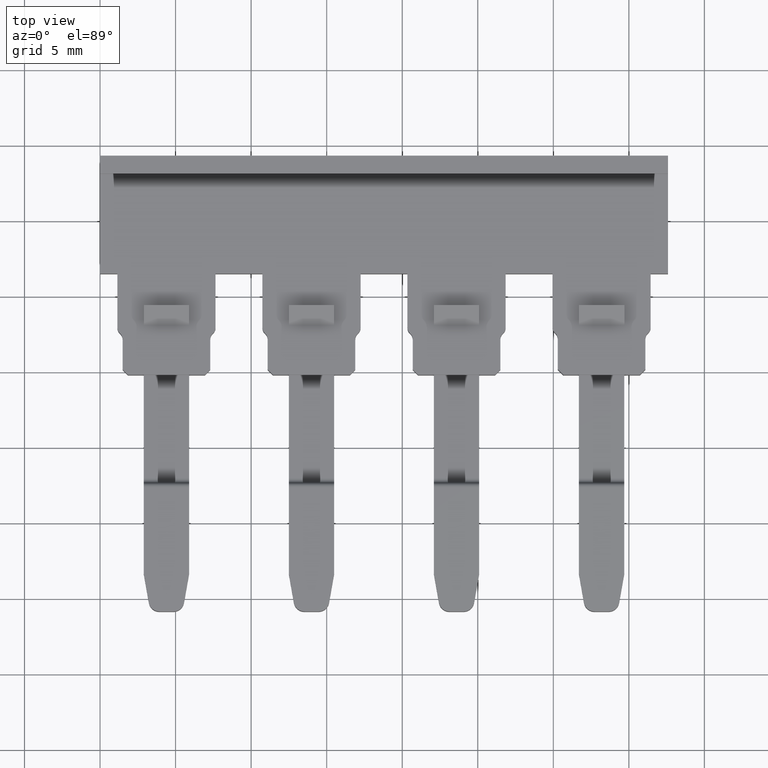
[diagram: clean part render]
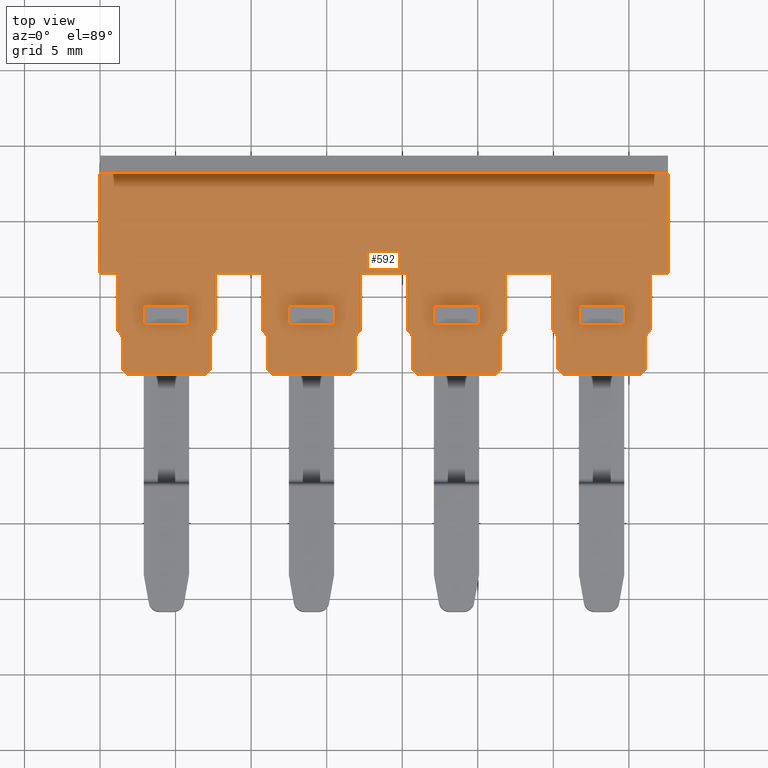
[diagram: same view with one face highlighted and labeled with its STEP entity id]
A machine part, top view. The second image highlights one B-rep face of the part: STEP entity #592.
In plain terms, the highlighted planar face has unit normal (0, 0, -1).
Its self-contained STEP definition (entity closure, byte-faithful):
#15 = EDGE_CURVE ( 'NONE', #5304, #5281, #1111, .T. ) ;
#25 = EDGE_CURVE ( 'NONE', #5001, #4995, #1173, .T. ) ;
#30 = EDGE_CURVE ( 'NONE', #5054, #5304, #1161, .T. ) ;
#31 = EDGE_CURVE ( 'NONE', #5125, #5121, #1151, .T. ) ;
#38 = EDGE_CURVE ( 'NONE', #5088, #5130, #1185, .T. ) ;
#50 = EDGE_CURVE ( 'NONE', #5117, #5108, #1190, .T. ) ;
#55 = EDGE_CURVE ( 'NONE', #5064, #5120, #1224, .T. ) ;
#71 = EDGE_CURVE ( 'NONE', #5281, #5155, #1272, .T. ) ;
#75 = EDGE_CURVE ( 'NONE', #5108, #5120, #2981, .T. ) ;
#78 = EDGE_CURVE ( 'NONE', #5088, #5046, #2969, .T. ) ;
#83 = EDGE_CURVE ( 'NONE', #5046, #5112, #1345, .T. ) ;
#84 = EDGE_CURVE ( 'NONE', #5155, #5112, #3020, .T. ) ;
#87 = EDGE_CURVE ( 'NONE', #5117, #5111, #3023, .T. ) ;
#91 = EDGE_CURVE ( 'NONE', #5064, #5124, #1344, .T. ) ;
#92 = EDGE_CURVE ( 'NONE', #5138, #5081, #1359, .T. ) ;
#93 = EDGE_CURVE ( 'NONE', #5105, #5109, #1319, .T. ) ;
#95 = EDGE_CURVE ( 'NONE', #5166, #5185, #1357, .T. ) ;
#96 = EDGE_CURVE ( 'NONE', #5061, #5174, #1351, .T. ) ;
#97 = EDGE_CURVE ( 'NONE', #5102, #5138, #3055, .T. ) ;
#98 = EDGE_CURVE ( 'NONE', #5113, #5087, #1379, .T. ) ;
#101 = EDGE_CURVE ( 'NONE', #5067, #5164, #1389, .T. ) ;
#102 = EDGE_CURVE ( 'NONE', #5111, #5121, #1396, .T. ) ;
#103 = EDGE_CURVE ( 'NONE', #5149, #5154, #1380, .T. ) ;
#104 = EDGE_CURVE ( 'NONE', #5113, #5114, #3036, .T. ) ;
#106 = EDGE_CURVE ( 'NONE', #5122, #5053, #1363, .T. ) ;
#108 = EDGE_CURVE ( 'NONE', #5148, #5226, #1387, .T. ) ;
#110 = EDGE_CURVE ( 'NONE', #5144, #5156, #1378, .T. ) ;
#111 = EDGE_CURVE ( 'NONE', #5118, #5058, #1407, .T. ) ;
#112 = EDGE_CURVE ( 'NONE', #5087, #5123, #3038, .T. ) ;
#113 = EDGE_CURVE ( 'NONE', #5057, #5001, #1451, .T. ) ;
#114 = EDGE_CURVE ( 'NONE', #5135, #5159, #1445, .T. ) ;
#115 = EDGE_CURVE ( 'NONE', #5084, #5124, #1421, .T. ) ;
#118 = EDGE_CURVE ( 'NONE', #5213, #5170, #1449, .T. ) ;
#121 = EDGE_CURVE ( 'NONE', #5160, #5159, #1409, .T. ) ;
#123 = EDGE_CURVE ( 'NONE', #5144, #5123, #1438, .T. ) ;
#124 = EDGE_CURVE ( 'NONE', #5114, #5047, #1443, .T. ) ;
#125 = EDGE_CURVE ( 'NONE', #5061, #5213, #1411, .T. ) ;
#126 = EDGE_CURVE ( 'NONE', #5174, #5170, #1437, .T. ) ;
#128 = EDGE_CURVE ( 'NONE', #5226, #5189, #1456, .T. ) ;
#129 = EDGE_CURVE ( 'NONE', #5145, #5189, #1493, .T. ) ;
#132 = EDGE_CURVE ( 'NONE', #5175, #5156, #1463, .T. ) ;
#134 = EDGE_CURVE ( 'NONE', #5057, #5081, #1452, .T. ) ;
#135 = EDGE_CURVE ( 'NONE', #5115, #5054, #3090, .T. ) ;
#137 = EDGE_CURVE ( 'NONE', #4995, #5104, #1487, .T. ) ;
#138 = EDGE_CURVE ( 'NONE', #5128, #5136, #1465, .T. ) ;
#139 = EDGE_CURVE ( 'NONE', #5164, #5154, #1479, .T. ) ;
#140 = EDGE_CURVE ( 'NONE', #5148, #5145, #1470, .T. ) ;
#141 = EDGE_CURVE ( 'NONE', #5235, #5160, #1480, .T. ) ;
#142 = EDGE_CURVE ( 'NONE', #5157, #5062, #1520, .T. ) ;
#144 = EDGE_CURVE ( 'NONE', #5119, #5110, #3096, .T. ) ;
#145 = EDGE_CURVE ( 'NONE', #5091, #5218, #1515, .T. ) ;
#146 = EDGE_CURVE ( 'NONE', #5086, #5110, #1535, .T. ) ;
#148 = EDGE_CURVE ( 'NONE', #5067, #5149, #1534, .T. ) ;
#149 = EDGE_CURVE ( 'NONE', #5084, #5130, #1524, .T. ) ;
#151 = EDGE_CURVE ( 'NONE', #5102, #5070, #1526, .T. ) ;
#152 = EDGE_CURVE ( 'NONE', #5091, #5079, #1538, .T. ) ;
#155 = EDGE_CURVE ( 'NONE', #5086, #5109, #1536, .T. ) ;
#161 = EDGE_CURVE ( 'NONE', #5047, #5092, #1590, .T. ) ;
#169 = EDGE_CURVE ( 'NONE', #5055, #5065, #3103, .T. ) ;
#173 = EDGE_CURVE ( 'NONE', #5072, #5136, #3107, .T. ) ;
#176 = EDGE_CURVE ( 'NONE', #5125, #5072, #1624, .T. ) ;
#181 = EDGE_CURVE ( 'NONE', #5177, #5053, #3149, .T. ) ;
#183 = EDGE_CURVE ( 'NONE', #5157, #5104, #1616, .T. ) ;
#184 = EDGE_CURVE ( 'NONE', #5115, #5119, #1627, .T. ) ;
#185 = EDGE_CURVE ( 'NONE', #5092, #5177, #1639, .T. ) ;
#186 = EDGE_CURVE ( 'NONE', #5118, #5079, #1612, .T. ) ;
#190 = EDGE_CURVE ( 'NONE', #5082, #5218, #1635, .T. ) ;
#193 = EDGE_CURVE ( 'NONE', #5062, #5172, #3116, .T. ) ;
#195 = EDGE_CURVE ( 'NONE', #5065, #5172, #1651, .T. ) ;
#204 = EDGE_CURVE ( 'NONE', #5235, #5135, #4500, .T. ) ;
#205 = EDGE_CURVE ( 'NONE', #5166, #5122, #3174, .T. ) ;
#206 = EDGE_CURVE ( 'NONE', #5082, #5128, #3120, .T. ) ;
#207 = EDGE_CURVE ( 'NONE', #5105, #5185, #4505, .T. ) ;
#209 = EDGE_CURVE ( 'NONE', #5070, #5058, #3119, .T. ) ;
#211 = EDGE_CURVE ( 'NONE', #5175, #5133, #4495, .T. ) ;
#217 = EDGE_CURVE ( 'NONE', #5055, #5133, #3576, .T. ) ;
#592 = ADVANCED_FACE ( 'NONE', ( #1825, #1818, #1855, #1873, #1821 ), #1833, .F. ) ;
#658 = ORIENTED_EDGE ( 'NONE', *, *, #185, .F. ) ;
#661 = ORIENTED_EDGE ( 'NONE', *, *, #144, .T. ) ;
#663 = ORIENTED_EDGE ( 'NONE', *, *, #98, .T. ) ;
#666 = ORIENTED_EDGE ( 'NONE', *, *, #190, .F. ) ;
#667 = ORIENTED_EDGE ( 'NONE', *, *, #75, .T. ) ;
#668 = ORIENTED_EDGE ( 'NONE', *, *, #112, .T. ) ;
#680 = ORIENTED_EDGE ( 'NONE', *, *, #87, .F. ) ;
#695 = ORIENTED_EDGE ( 'NONE', *, *, #102, .F. ) ;
#703 = ORIENTED_EDGE ( 'NONE', *, *, #31, .T. ) ;
#708 = ORIENTED_EDGE ( 'NONE', *, *, #111, .F. ) ;
#709 = ORIENTED_EDGE ( 'NONE', *, *, #206, .T. ) ;
#710 = ORIENTED_EDGE ( 'NONE', *, *, #15, .F. ) ;
#711 = ORIENTED_EDGE ( 'NONE', *, *, #78, .T. ) ;
#713 = ORIENTED_EDGE ( 'NONE', *, *, #104, .F. ) ;
#715 = ORIENTED_EDGE ( 'NONE', *, *, #113, .F. ) ;
#716 = ORIENTED_EDGE ( 'NONE', *, *, #101, .F. ) ;
#717 = ORIENTED_EDGE ( 'NONE', *, *, #186, .T. ) ;
#718 = ORIENTED_EDGE ( 'NONE', *, *, #134, .T. ) ;
#719 = ORIENTED_EDGE ( 'NONE', *, *, #211, .T. ) ;
#720 = ORIENTED_EDGE ( 'NONE', *, *, #151, .T. ) ;
#721 = ORIENTED_EDGE ( 'NONE', *, *, #97, .F. ) ;
#722 = ORIENTED_EDGE ( 'NONE', *, *, #93, .F. ) ;
#723 = ORIENTED_EDGE ( 'NONE', *, *, #123, .F. ) ;
#724 = ORIENTED_EDGE ( 'NONE', *, *, #92, .F. ) ;
#725 = ORIENTED_EDGE ( 'NONE', *, *, #149, .T. ) ;
#727 = ORIENTED_EDGE ( 'NONE', *, *, #217, .F. ) ;
#728 = ORIENTED_EDGE ( 'NONE', *, *, #209, .T. ) ;
#729 = ORIENTED_EDGE ( 'NONE', *, *, #115, .F. ) ;
#731 = ORIENTED_EDGE ( 'NONE', *, *, #132, .F. ) ;
#732 = ORIENTED_EDGE ( 'NONE', *, *, #155, .T. ) ;
#733 = ORIENTED_EDGE ( 'NONE', *, *, #30, .F. ) ;
#734 = ORIENTED_EDGE ( 'NONE', *, *, #152, .F. ) ;
#735 = ORIENTED_EDGE ( 'NONE', *, *, #205, .T. ) ;
#736 = ORIENTED_EDGE ( 'NONE', *, *, #135, .F. ) ;
#737 = ORIENTED_EDGE ( 'NONE', *, *, #106, .T. ) ;
#738 = ORIENTED_EDGE ( 'NONE', *, *, #173, .F. ) ;
#739 = ORIENTED_EDGE ( 'NONE', *, *, #204, .F. ) ;
#740 = ORIENTED_EDGE ( 'NONE', *, *, #207, .T. ) ;
#741 = ORIENTED_EDGE ( 'NONE', *, *, #138, .T. ) ;
#742 = ORIENTED_EDGE ( 'NONE', *, *, #84, .F. ) ;
#743 = ORIENTED_EDGE ( 'NONE', *, *, #55, .F. ) ;
#744 = ORIENTED_EDGE ( 'NONE', *, *, #91, .T. ) ;
#745 = ORIENTED_EDGE ( 'NONE', *, *, #142, .F. ) ;
#746 = ORIENTED_EDGE ( 'NONE', *, *, #195, .T. ) ;
#747 = ORIENTED_EDGE ( 'NONE', *, *, #140, .F. ) ;
#749 = ORIENTED_EDGE ( 'NONE', *, *, #139, .F. ) ;
#750 = ORIENTED_EDGE ( 'NONE', *, *, #114, .F. ) ;
#751 = ORIENTED_EDGE ( 'NONE', *, *, #83, .T. ) ;
#752 = ORIENTED_EDGE ( 'NONE', *, *, #50, .T. ) ;
#753 = ORIENTED_EDGE ( 'NONE', *, *, #176, .F. ) ;
#754 = ORIENTED_EDGE ( 'NONE', *, *, #181, .F. ) ;
#755 = ORIENTED_EDGE ( 'NONE', *, *, #148, .T. ) ;
#756 = ORIENTED_EDGE ( 'NONE', *, *, #141, .T. ) ;
#758 = ORIENTED_EDGE ( 'NONE', *, *, #193, .F. ) ;
#759 = ORIENTED_EDGE ( 'NONE', *, *, #145, .T. ) ;
#760 = ORIENTED_EDGE ( 'NONE', *, *, #71, .F. ) ;
#761 = ORIENTED_EDGE ( 'NONE', *, *, #146, .F. ) ;
#762 = ORIENTED_EDGE ( 'NONE', *, *, #95, .F. ) ;
#763 = ORIENTED_EDGE ( 'NONE', *, *, #183, .T. ) ;
#764 = ORIENTED_EDGE ( 'NONE', *, *, #124, .F. ) ;
#765 = ORIENTED_EDGE ( 'NONE', *, *, #184, .T. ) ;
#766 = ORIENTED_EDGE ( 'NONE', *, *, #110, .T. ) ;
#767 = ORIENTED_EDGE ( 'NONE', *, *, #25, .F. ) ;
#768 = ORIENTED_EDGE ( 'NONE', *, *, #38, .F. ) ;
#769 = ORIENTED_EDGE ( 'NONE', *, *, #169, .T. ) ;
#770 = ORIENTED_EDGE ( 'NONE', *, *, #137, .F. ) ;
#771 = ORIENTED_EDGE ( 'NONE', *, *, #161, .F. ) ;
#778 = ORIENTED_EDGE ( 'NONE', *, *, #126, .T. ) ;
#782 = ORIENTED_EDGE ( 'NONE', *, *, #125, .F. ) ;
#787 = ORIENTED_EDGE ( 'NONE', *, *, #103, .T. ) ;
#788 = ORIENTED_EDGE ( 'NONE', *, *, #108, .T. ) ;
#792 = ORIENTED_EDGE ( 'NONE', *, *, #118, .F. ) ;
#793 = ORIENTED_EDGE ( 'NONE', *, *, #128, .T. ) ;
#796 = ORIENTED_EDGE ( 'NONE', *, *, #129, .F. ) ;
#817 = ORIENTED_EDGE ( 'NONE', *, *, #121, .T. ) ;
#829 = ORIENTED_EDGE ( 'NONE', *, *, #96, .T. ) ;
#1097 = DIRECTION ( 'NONE',  ( -1.000000000000000000, 0.0000000000000000000, 0.0000000000000000000 ) ) ;
#1111 = LINE ( 'NONE', #1131, #2944 ) ;
#1131 = CARTESIAN_POINT ( 'NONE',  ( 1137.244467917465000, 666.4912584401425900, 3.000000000000000000 ) ) ;
#1145 = DIRECTION ( 'NONE',  ( 1.000000000000000000, -0.0000000000000000000, 0.0000000000000000000 ) ) ;
#1150 = DIRECTION ( 'NONE',  ( 0.0000000000000000000, 1.000000000000000000, 0.0000000000000000000 ) ) ;
#1151 = LINE ( 'NONE', #1158, #2941 ) ;
#1152 = CARTESIAN_POINT ( 'NONE',  ( 1137.394467408302300, 673.0878760720547700, 3.000000000000000000 ) ) ;
#1158 = CARTESIAN_POINT ( 'NONE',  ( 1137.394467408302300, 666.4912584401425900, 3.000000000000000000 ) ) ;
#1161 = LINE ( 'NONE', #1163, #2927 ) ;
#1163 = CARTESIAN_POINT ( 'NONE',  ( 1140.344467917465200, 662.1736497164254200, 3.000000000000000000 ) ) ;
#1172 = DIRECTION ( 'NONE',  ( 1.000000000000000000, 0.0000000000000000000, 0.0000000000000000000 ) ) ;
#1173 = LINE ( 'NONE', #1152, #2940 ) ;
#1185 = LINE ( 'NONE', #1211, #2957 ) ;
#1190 = LINE ( 'NONE', #1230, #2979 ) ;
#1211 = CARTESIAN_POINT ( 'NONE',  ( 1136.894466901656000, 662.1736497164254200, 3.000000000000000000 ) ) ;
#1215 = DIRECTION ( 'NONE',  ( -0.0000000000000000000, -1.000000000000000000, -0.0000000000000000000 ) ) ;
#1224 = LINE ( 'NONE', #1247, #3003 ) ;
#1230 = CARTESIAN_POINT ( 'NONE',  ( 1130.890914677786400, 662.5643095299470800, 3.000000000000000000 ) ) ;
#1231 = DIRECTION ( 'NONE',  ( 0.0000000000000000000, 1.000000000000000000, 0.0000000000000000000 ) ) ;
#1233 = DIRECTION ( 'NONE',  ( 0.7071156533801817900, -0.7070979088815909600, -0.0000000000000000000 ) ) ;
#1247 = CARTESIAN_POINT ( 'NONE',  ( 1131.094466376607200, 662.1736497164254200, 3.000000000000000000 ) ) ;
#1272 = LINE ( 'NONE', #1294, #3005 ) ;
#1273 = CARTESIAN_POINT ( 'NONE',  ( 1130.594468426628300, 662.1536497164254300, 3.000000000000000000 ) ) ;
#1276 = CARTESIAN_POINT ( 'NONE',  ( 1137.394467408302300, 662.1536497164254300, 3.000000000000000000 ) ) ;
#1280 = DIRECTION ( 'NONE',  ( -0.0000000000000000000, -1.000000000000000000, -0.0000000000000000000 ) ) ;
#1294 = CARTESIAN_POINT ( 'NONE',  ( 1137.244467917465000, 662.1736497164254200, 3.000000000000000000 ) ) ;
#1295 = DIRECTION ( 'NONE',  ( -0.0000000000000000000, -0.0000000000000000000, -1.000000000000000000 ) ) ;
#1296 = DIRECTION ( 'NONE',  ( -1.000000000000000000, 0.0000000000000000000, 0.0000000000000000000 ) ) ;
#1310 = DIRECTION ( 'NONE',  ( -0.0000000000000000000, -0.0000000000000000000, -1.000000000000000000 ) ) ;
#1311 = DIRECTION ( 'NONE',  ( -1.000000000000000000, 0.0000000000000000000, 0.0000000000000000000 ) ) ;
#1315 = DIRECTION ( 'NONE',  ( -0.0000000000000000000, -0.0000000000000000000, -1.000000000000000000 ) ) ;
#1319 = LINE ( 'NONE', #1353, #2976 ) ;
#1320 = DIRECTION ( 'NONE',  ( -1.000000000000000000, 0.0000000000000000000, -0.0000000000000000000 ) ) ;
#1321 = DIRECTION ( 'NONE',  ( 0.0000000000000000000, 1.000000000000000000, 0.0000000000000000000 ) ) ;
#1331 = CARTESIAN_POINT ( 'NONE',  ( 1131.094466376607200, 660.1392804752734900, 3.000000000000000000 ) ) ;
#1332 = CARTESIAN_POINT ( 'NONE',  ( 1146.494466901655900, 662.1736497164254200, 3.000000000000000000 ) ) ;
#1334 = DIRECTION ( 'NONE',  ( -1.000000000000000000, 0.0000000000000000000, 0.0000000000000000000 ) ) ;
#1338 = DIRECTION ( 'NONE',  ( 0.7071156533801817900, 0.7070979088815909600, -0.0000000000000000000 ) ) ;
#1341 = DIRECTION ( 'NONE',  ( -0.0000000000000000000, -0.0000000000000000000, -1.000000000000000000 ) ) ;
#1343 = DIRECTION ( 'NONE',  ( 0.7071067811865474600, -0.7071067811865474600, -0.0000000000000000000 ) ) ;
#1344 = LINE ( 'NONE', #1331, #2973 ) ;
#1345 = LINE ( 'NONE', #1358, #3015 ) ;
#1349 = CARTESIAN_POINT ( 'NONE',  ( 1121.144467917465100, 662.1736497164254200, 3.000000000000000000 ) ) ;
#1350 = DIRECTION ( 'NONE',  ( -1.000000000000000000, 0.0000000000000000000, 0.0000000000000000000 ) ) ;
#1351 = LINE ( 'NONE', #1365, #2988 ) ;
#1352 = CARTESIAN_POINT ( 'NONE',  ( 1131.244468432835000, 662.9178632849957500, 3.000000000000000000 ) ) ;
#1353 = CARTESIAN_POINT ( 'NONE',  ( 1146.994467408302400, 659.7892820011524000, 3.000000000000000000 ) ) ;
#1356 = CARTESIAN_POINT ( 'NONE',  ( 1136.744467402095300, 662.9178632849957500, 3.000000000000000000 ) ) ;
#1357 = LINE ( 'NONE', #1332, #3018 ) ;
#1358 = CARTESIAN_POINT ( 'NONE',  ( 1137.098021157143900, 662.5643095299470800, 3.000000000000000000 ) ) ;
#1359 = LINE ( 'NONE', #1349, #2975 ) ;
#1361 = CARTESIAN_POINT ( 'NONE',  ( 1146.698021157144000, 662.5643095299470800, 3.000000000000000000 ) ) ;
#1362 = DIRECTION ( 'NONE',  ( 0.0000000000000000000, 1.000000000000000000, -3.336006684570865400E-016 ) ) ;
#1363 = LINE ( 'NONE', #1361, #3051 ) ;
#1365 = CARTESIAN_POINT ( 'NONE',  ( 1142.094467917465400, 663.0878760720547700, 3.000000000000000000 ) ) ;
#1370 = DIRECTION ( 'NONE',  ( -1.000000000000000000, 0.0000000000000000000, 0.0000000000000000000 ) ) ;
#1371 = DIRECTION ( 'NONE',  ( -0.0000000000000000000, -0.0000000000000000000, -1.000000000000000000 ) ) ;
#1372 = CARTESIAN_POINT ( 'NONE',  ( 1150.090914677786500, 662.5843095299470600, 3.000000000000000000 ) ) ;
#1373 = DIRECTION ( 'NONE',  ( 0.7071156533801817900, -0.7070979088815909600, -0.0000000000000000000 ) ) ;
#1375 = CARTESIAN_POINT ( 'NONE',  ( 1130.744467917465300, 662.1736497164254200, 3.000000000000000000 ) ) ;
#1377 = CARTESIAN_POINT ( 'NONE',  ( 1151.694467917465500, 663.0878760720547700, 3.000000000000000000 ) ) ;
#1378 = LINE ( 'NONE', #1386, #3053 ) ;
#1379 = LINE ( 'NONE', #1372, #3065 ) ;
#1380 = LINE ( 'NONE', #1390, #3034 ) ;
#1381 = DIRECTION ( 'NONE',  ( -1.000000000000000000, 0.0000000000000000000, 0.0000000000000000000 ) ) ;
#1383 = DIRECTION ( 'NONE',  ( 0.0000000000000000000, 1.000000000000000000, -3.336006684570865400E-016 ) ) ;
#1384 = DIRECTION ( 'NONE',  ( 0.7071156533801817900, 0.7070979088815909600, -0.0000000000000000000 ) ) ;
#1385 = DIRECTION ( 'NONE',  ( 1.000000000000000000, 0.0000000000000000000, 0.0000000000000000000 ) ) ;
#1386 = CARTESIAN_POINT ( 'NONE',  ( 1150.294466376607300, 660.1592804752734800, 3.000000000000000000 ) ) ;
#1387 = LINE ( 'NONE', #1391, #3050 ) ;
#1389 = LINE ( 'NONE', #1377, #3033 ) ;
#1390 = CARTESIAN_POINT ( 'NONE',  ( 1151.694467917465500, 664.3878760720547200, 2.999999999999999600 ) ) ;
#1391 = CARTESIAN_POINT ( 'NONE',  ( 1122.894467917465400, 663.0878760720547700, 3.000000000000000000 ) ) ;
#1392 = DIRECTION ( 'NONE',  ( -0.0000000000000000000, -1.000000000000000000, -0.0000000000000000000 ) ) ;
#1393 = DIRECTION ( 'NONE',  ( 1.000000000000000000, 0.0000000000000000000, 0.0000000000000000000 ) ) ;
#1394 = CARTESIAN_POINT ( 'NONE',  ( 1121.644468432835100, 662.9178632849957500, 3.000000000000000000 ) ) ;
#1395 = DIRECTION ( 'NONE',  ( -0.0000000000000000000, -0.0000000000000000000, -1.000000000000000000 ) ) ;
#1396 = LINE ( 'NONE', #1375, #3028 ) ;
#1398 = DIRECTION ( 'NONE',  ( 0.0000000000000000000, 1.000000000000000000, 0.0000000000000000000 ) ) ;
#1401 = CARTESIAN_POINT ( 'NONE',  ( 1150.444468432835300, 662.9378632849957300, 3.000000000000000000 ) ) ;
#1405 = DIRECTION ( 'NONE',  ( -1.000000000000000000, 0.0000000000000000000, -0.0000000000000000000 ) ) ;
#1406 = DIRECTION ( 'NONE',  ( 0.0000000000000000000, 1.000000000000000000, -3.336006684570865400E-016 ) ) ;
#1407 = LINE ( 'NONE', #1431, #3056 ) ;
#1409 = LINE ( 'NONE', #1450, #3042 ) ;
#1410 = DIRECTION ( 'NONE',  ( 0.0000000000000000000, 1.000000000000000000, 0.0000000000000000000 ) ) ;
#1411 = LINE ( 'NONE', #1423, #3035 ) ;
#1414 = CARTESIAN_POINT ( 'NONE',  ( 1150.294466376607300, 662.1736497164254200, 3.000000000000000000 ) ) ;
#1415 = DIRECTION ( 'NONE',  ( -0.0000000000000000000, -0.0000000000000000000, -1.000000000000000000 ) ) ;
#1417 = CARTESIAN_POINT ( 'NONE',  ( 1149.944467917465300, 662.1736497164254200, 3.000000000000000000 ) ) ;
#1418 = CARTESIAN_POINT ( 'NONE',  ( 1137.394467408302300, 659.7892820011524000, 3.000000000000000000 ) ) ;
#1419 = DIRECTION ( 'NONE',  ( 0.0000000000000000000, 1.000000000000000000, 0.0000000000000000000 ) ) ;
#1420 = DIRECTION ( 'NONE',  ( 0.7071067811865474600, -0.7071067811865474600, -0.0000000000000000000 ) ) ;
#1421 = LINE ( 'NONE', #1418, #3040 ) ;
#1423 = CARTESIAN_POINT ( 'NONE',  ( 1142.094467917465400, 663.0878760720547700, 3.000000000000000000 ) ) ;
#1427 = CARTESIAN_POINT ( 'NONE',  ( 1119.994470802329900, 662.1736497164254200, 3.000000000000000000 ) ) ;
#1431 = CARTESIAN_POINT ( 'NONE',  ( 1121.494466376607100, 662.1736497164254200, 3.000000000000000000 ) ) ;
#1432 = DIRECTION ( 'NONE',  ( -1.000000000000000000, 0.0000000000000000000, 0.0000000000000000000 ) ) ;
#1435 = CARTESIAN_POINT ( 'NONE',  ( 1149.794468426628100, 662.1736497164254200, 3.000000000000000000 ) ) ;
#1436 = CARTESIAN_POINT ( 'NONE',  ( 1145.094467917465200, 663.0878760720547700, 3.000000000000000000 ) ) ;
#1437 = LINE ( 'NONE', #1488, #3027 ) ;
#1438 = LINE ( 'NONE', #1414, #3025 ) ;
#1439 = DIRECTION ( 'NONE',  ( 0.0000000000000000000, 1.000000000000000000, -3.336006684570865400E-016 ) ) ;
#1440 = DIRECTION ( 'NONE',  ( 0.0000000000000000000, 1.000000000000000000, 0.0000000000000000000 ) ) ;
#1442 = DIRECTION ( 'NONE',  ( 1.000000000000000000, 0.0000000000000000000, 0.0000000000000000000 ) ) ;
#1443 = LINE ( 'NONE', #1417, #3045 ) ;
#1444 = CARTESIAN_POINT ( 'NONE',  ( 1135.494467917465300, 663.0878760720547700, 3.000000000000000000 ) ) ;
#1445 = LINE ( 'NONE', #1444, #3026 ) ;
#1446 = DIRECTION ( 'NONE',  ( 0.0000000000000000000, 1.000000000000000000, 0.0000000000000000000 ) ) ;
#1449 = LINE ( 'NONE', #1436, #3041 ) ;
#1450 = CARTESIAN_POINT ( 'NONE',  ( 1132.494467917465300, 664.3878760720547200, 2.999999999999999600 ) ) ;
#1451 = LINE ( 'NONE', #1427, #3030 ) ;
#1452 = LINE ( 'NONE', #1483, #3095 ) ;
#1453 = DIRECTION ( 'NONE',  ( -0.0000000000000000000, -0.0000000000000000000, -1.000000000000000000 ) ) ;
#1454 = DIRECTION ( 'NONE',  ( -1.000000000000000000, 0.0000000000000000000, 0.0000000000000000000 ) ) ;
#1455 = DIRECTION ( 'NONE',  ( 1.000000000000000000, 0.0000000000000000000, 0.0000000000000000000 ) ) ;
#1456 = LINE ( 'NONE', #1489, #3043 ) ;
#1462 = CARTESIAN_POINT ( 'NONE',  ( 1154.694467917465300, 663.0878760720547700, 3.000000000000000000 ) ) ;
#1463 = LINE ( 'NONE', #1482, #3072 ) ;
#1465 = LINE ( 'NONE', #1497, #3112 ) ;
#1468 = DIRECTION ( 'NONE',  ( 1.000000000000000000, 0.0000000000000000000, 0.0000000000000000000 ) ) ;
#1469 = DIRECTION ( 'NONE',  ( -0.0000000000000000000, -1.000000000000000000, -0.0000000000000000000 ) ) ;
#1470 = LINE ( 'NONE', #1478, #3097 ) ;
#1473 = CARTESIAN_POINT ( 'NONE',  ( 1125.894467917465100, 663.0878760720547700, 3.000000000000000000 ) ) ;
#1475 = CARTESIAN_POINT ( 'NONE',  ( 1157.594465032600300, 662.1736497164254200, 3.000000000000000000 ) ) ;
#1476 = DIRECTION ( 'NONE',  ( -1.000000000000000000, 0.0000000000000000000, 0.0000000000000000000 ) ) ;
#1477 = DIRECTION ( 'NONE',  ( 0.0000000000000000000, 1.000000000000000000, -3.336006684570865400E-016 ) ) ;
#1478 = CARTESIAN_POINT ( 'NONE',  ( 1122.894467917465400, 663.0878760720547700, 3.000000000000000000 ) ) ;
#1479 = LINE ( 'NONE', #1462, #3109 ) ;
#1480 = LINE ( 'NONE', #1521, #3108 ) ;
#1482 = CARTESIAN_POINT ( 'NONE',  ( 1146.994467408302400, 659.7892820011524000, 3.000000000000000000 ) ) ;
#1483 = CARTESIAN_POINT ( 'NONE',  ( 1127.794467408302400, 666.4912584401425900, 3.000000000000000000 ) ) ;
#1484 = DIRECTION ( 'NONE',  ( 1.000000000000000000, 0.0000000000000000000, 0.0000000000000000000 ) ) ;
#1485 = CARTESIAN_POINT ( 'NONE',  ( 1140.844468432835100, 662.9178632849957500, 3.000000000000000000 ) ) ;
#1486 = DIRECTION ( 'NONE',  ( 1.000000000000000000, 0.0000000000000000000, 0.0000000000000000000 ) ) ;
#1487 = LINE ( 'NONE', #1475, #3070 ) ;
#1488 = CARTESIAN_POINT ( 'NONE',  ( 1142.094467917465400, 664.3878760720547200, 2.999999999999999600 ) ) ;
#1489 = CARTESIAN_POINT ( 'NONE',  ( 1122.894467917465400, 664.3878760720547200, 2.999999999999999600 ) ) ;
#1492 = DIRECTION ( 'NONE',  ( 1.000000000000000000, 0.0000000000000000000, 0.0000000000000000000 ) ) ;
#1493 = LINE ( 'NONE', #1473, #3058 ) ;
#1496 = DIRECTION ( 'NONE',  ( 0.7071156533801817900, 0.7070979088815909600, -0.0000000000000000000 ) ) ;
#1497 = CARTESIAN_POINT ( 'NONE',  ( 1127.498021157144000, 662.5643095299470800, 3.000000000000000000 ) ) ;
#1498 = DIRECTION ( 'NONE',  ( 0.0000000000000000000, 1.000000000000000000, -3.336006684570865400E-016 ) ) ;
#1500 = DIRECTION ( 'NONE',  ( 0.7071156533801817900, -0.7070979088815909600, -0.0000000000000000000 ) ) ;
#1503 = DIRECTION ( 'NONE',  ( 0.7071067811865474600, -0.7071067811865474600, -0.0000000000000000000 ) ) ;
#1506 = DIRECTION ( 'NONE',  ( -0.0000000000000000000, -1.000000000000000000, -0.0000000000000000000 ) ) ;
#1507 = CARTESIAN_POINT ( 'NONE',  ( 1127.294469458323200, 660.1392804752734900, 3.000000000000000000 ) ) ;
#1508 = DIRECTION ( 'NONE',  ( 0.0000000000000000000, 1.000000000000000000, 0.0000000000000000000 ) ) ;
#1509 = DIRECTION ( 'NONE',  ( 0.7071067811865474600, 0.7071067811865474600, -0.0000000000000000000 ) ) ;
#1510 = DIRECTION ( 'NONE',  ( 0.0000000000000000000, 1.000000000000000000, -3.336006684570865400E-016 ) ) ;
#1513 = DIRECTION ( 'NONE',  ( -0.0000000000000000000, -0.0000000000000000000, -1.000000000000000000 ) ) ;
#1515 = LINE ( 'NONE', #1507, #3094 ) ;
#1516 = CARTESIAN_POINT ( 'NONE',  ( 1121.290914677786300, 662.5643095299470800, 3.000000000000000000 ) ) ;
#1517 = CARTESIAN_POINT ( 'NONE',  ( 1136.894469458323100, 660.1392804752734900, 3.000000000000000000 ) ) ;
#1518 = DIRECTION ( 'NONE',  ( -1.000000000000000000, 0.0000000000000000000, -0.0000000000000000000 ) ) ;
#1519 = CARTESIAN_POINT ( 'NONE',  ( 1140.694466376607100, 662.1736497164254200, 3.000000000000000000 ) ) ;
#1520 = LINE ( 'NONE', #1533, #3092 ) ;
#1521 = CARTESIAN_POINT ( 'NONE',  ( 1132.494467917465300, 663.0878760720547700, 3.000000000000000000 ) ) ;
#1523 = DIRECTION ( 'NONE',  ( 0.7071067811865474600, 0.7071067811865474600, -0.0000000000000000000 ) ) ;
#1524 = LINE ( 'NONE', #1517, #3100 ) ;
#1525 = CARTESIAN_POINT ( 'NONE',  ( 1127.794467408302400, 659.7892820011524000, 3.000000000000000000 ) ) ;
#1526 = LINE ( 'NONE', #1516, #3075 ) ;
#1528 = DIRECTION ( 'NONE',  ( -1.000000000000000000, 0.0000000000000000000, 0.0000000000000000000 ) ) ;
#1533 = CARTESIAN_POINT ( 'NONE',  ( 1156.444467917465300, 662.1736497164254200, 3.000000000000000000 ) ) ;
#1534 = LINE ( 'NONE', #1539, #3089 ) ;
#1535 = LINE ( 'NONE', #1519, #3088 ) ;
#1536 = LINE ( 'NONE', #1541, #3074 ) ;
#1538 = LINE ( 'NONE', #1525, #3085 ) ;
#1539 = CARTESIAN_POINT ( 'NONE',  ( 1151.694467917465500, 663.0878760720547700, 3.000000000000000000 ) ) ;
#1541 = CARTESIAN_POINT ( 'NONE',  ( 1140.694466376607100, 660.1392804752734900, 3.000000000000000000 ) ) ;
#1543 = CARTESIAN_POINT ( 'NONE',  ( 1140.194468426628200, 662.1536497164254300, 3.000000000000000000 ) ) ;
#1544 = DIRECTION ( 'NONE',  ( 0.0000000000000000000, 1.000000000000000000, -3.336006684570865400E-016 ) ) ;
#1547 = CARTESIAN_POINT ( 'NONE',  ( 1146.844467917465200, 666.4912584401425900, 3.000000000000000000 ) ) ;
#1551 = DIRECTION ( 'NONE',  ( -0.0000000000000000000, -0.0000000000000000000, -1.000000000000000000 ) ) ;
#1556 = DIRECTION ( 'NONE',  ( -1.000000000000000000, 0.0000000000000000000, 0.0000000000000000000 ) ) ;
#1564 = DIRECTION ( 'NONE',  ( -1.000000000000000000, 0.0000000000000000000, 0.0000000000000000000 ) ) ;
#1579 = CARTESIAN_POINT ( 'NONE',  ( 1156.594467408302300, 662.1736497164254200, 3.000000000000000000 ) ) ;
#1590 = LINE ( 'NONE', #1547, #3099 ) ;
#1592 = DIRECTION ( 'NONE',  ( -0.0000000000000000000, -0.0000000000000000000, -1.000000000000000000 ) ) ;
#1595 = DIRECTION ( 'NONE',  ( -0.0000000000000000000, -0.0000000000000000000, -1.000000000000000000 ) ) ;
#1596 = DIRECTION ( 'NONE',  ( -1.000000000000000000, 0.0000000000000000000, 0.0000000000000000000 ) ) ;
#1599 = CARTESIAN_POINT ( 'NONE',  ( 1146.994467408302400, 666.4912584401425900, 3.000000000000000000 ) ) ;
#1602 = DIRECTION ( 'NONE',  ( 1.000000000000000000, 0.0000000000000000000, 0.0000000000000000000 ) ) ;
#1604 = DIRECTION ( 'NONE',  ( -1.000000000000000000, 0.0000000000000000000, 0.0000000000000000000 ) ) ;
#1611 = CARTESIAN_POINT ( 'NONE',  ( 1140.490914677786300, 662.5643095299470800, 3.000000000000000000 ) ) ;
#1612 = LINE ( 'NONE', #1652, #3169 ) ;
#1616 = LINE ( 'NONE', #1599, #3124 ) ;
#1618 = CARTESIAN_POINT ( 'NONE',  ( 1127.144467402095200, 662.9178632849957500, 3.000000000000000000 ) ) ;
#1624 = LINE ( 'NONE', #1631, #3170 ) ;
#1625 = DIRECTION ( 'NONE',  ( -0.0000000000000000000, -1.000000000000000000, -0.0000000000000000000 ) ) ;
#1627 = LINE ( 'NONE', #1611, #3157 ) ;
#1628 = DIRECTION ( 'NONE',  ( 0.7071156533801817900, -0.7070979088815909600, -0.0000000000000000000 ) ) ;
#1630 = CARTESIAN_POINT ( 'NONE',  ( 1146.344467402095200, 662.9178632849957500, 3.000000000000000000 ) ) ;
#1631 = CARTESIAN_POINT ( 'NONE',  ( 1127.644467917465100, 662.1736497164254200, 3.000000000000000000 ) ) ;
#1635 = LINE ( 'NONE', #1669, #3138 ) ;
#1636 = DIRECTION ( 'NONE',  ( -0.0000000000000000000, -1.000000000000000000, -0.0000000000000000000 ) ) ;
#1639 = LINE ( 'NONE', #1646, #3129 ) ;
#1646 = CARTESIAN_POINT ( 'NONE',  ( 1146.844467917465200, 662.1736497164254200, 3.000000000000000000 ) ) ;
#1647 = DIRECTION ( 'NONE',  ( -0.0000000000000000000, -1.000000000000000000, -0.0000000000000000000 ) ) ;
#1651 = LINE ( 'NONE', #1668, #3140 ) ;
#1652 = CARTESIAN_POINT ( 'NONE',  ( 1121.494466376607100, 660.1392804752734900, 3.000000000000000000 ) ) ;
#1653 = CARTESIAN_POINT ( 'NONE',  ( 1155.944467402095400, 662.9378632849957300, 3.000000000000000000 ) ) ;
#1655 = DIRECTION ( 'NONE',  ( 0.7071156533801817900, 0.7070979088815909600, -0.0000000000000000000 ) ) ;
#1658 = DIRECTION ( 'NONE',  ( 0.7071067811865474600, -0.7071067811865474600, -0.0000000000000000000 ) ) ;
#1660 = DIRECTION ( 'NONE',  ( -0.0000000000000000000, -0.0000000000000000000, -1.000000000000000000 ) ) ;
#1664 = DIRECTION ( 'NONE',  ( -1.000000000000000000, 0.0000000000000000000, 0.0000000000000000000 ) ) ;
#1668 = CARTESIAN_POINT ( 'NONE',  ( 1156.298021157144100, 662.5843095299470600, 3.000000000000000000 ) ) ;
#1669 = CARTESIAN_POINT ( 'NONE',  ( 1127.294466901655800, 662.1736497164254200, 3.000000000000000000 ) ) ;
#1818 = FACE_BOUND ( 'NONE', #4941, .T. ) ;
#1821 = FACE_BOUND ( 'NONE', #4925, .T. ) ;
#1825 = FACE_OUTER_BOUND ( 'NONE', #4980, .T. ) ;
#1833 = PLANE ( 'NONE',  #2855 ) ;
#1837 = CARTESIAN_POINT ( 'NONE',  ( 1137.394467408302300, 662.1736497164254200, 3.000000000000000000 ) ) ;
#1855 = FACE_BOUND ( 'NONE', #4954, .T. ) ;
#1859 = DIRECTION ( 'NONE',  ( 0.0000000000000000000, 0.0000000000000000000, -1.000000000000000000 ) ) ;
#1873 = FACE_BOUND ( 'NONE', #4979, .T. ) ;
#1874 = DIRECTION ( 'NONE',  ( -1.000000000000000000, 0.0000000000000000000, -0.0000000000000000000 ) ) ;
#2051 = CARTESIAN_POINT ( 'NONE',  ( 1157.594465032600300, 673.0878760720547700, 3.000000000000000000 ) ) ;
#2079 = CARTESIAN_POINT ( 'NONE',  ( 1119.994470802329900, 673.0878760720547700, 3.000000000000000000 ) ) ;
#2093 = CARTESIAN_POINT ( 'NONE',  ( 1121.290916895878800, 662.5643073119101700, 3.000000000000000000 ) ) ;
#2096 = CARTESIAN_POINT ( 'NONE',  ( 1121.844464850728200, 659.7892820011524000, 3.000000000000000000 ) ) ;
#2097 = CARTESIAN_POINT ( 'NONE',  ( 1137.040918515522400, 662.5072083212701300, 3.000000000000000000 ) ) ;
#2102 = CARTESIAN_POINT ( 'NONE',  ( 1157.594465032600300, 666.4912584401425900, 3.000000000000000000 ) ) ;
#2103 = CARTESIAN_POINT ( 'NONE',  ( 1146.144470984202100, 659.7892820011524000, 3.000000000000000400 ) ) ;
#2106 = CARTESIAN_POINT ( 'NONE',  ( 1127.294466901655800, 662.1536497164254300, 3.000000000000000000 ) ) ;
#2107 = CARTESIAN_POINT ( 'NONE',  ( 1150.148017319408400, 662.5272083212702200, 3.000000000000000000 ) ) ;
#2108 = CARTESIAN_POINT ( 'NONE',  ( 1131.094466376607200, 660.1392804752734900, 3.000000000000000400 ) ) ;
#2109 = CARTESIAN_POINT ( 'NONE',  ( 1156.444467917465300, 662.9378667459767500, 3.000000000000000000 ) ) ;
#2110 = CARTESIAN_POINT ( 'NONE',  ( 1146.698018939051500, 662.5643073119101700, 3.000000000000000000 ) ) ;
#2116 = CARTESIAN_POINT ( 'NONE',  ( 1140.694466376607100, 660.1392804752734900, 3.000000000000000400 ) ) ;
#2119 = CARTESIAN_POINT ( 'NONE',  ( 1156.094466901656000, 662.1736497164254200, 3.000000000000000000 ) ) ;
#2122 = CARTESIAN_POINT ( 'NONE',  ( 1126.944470984202100, 659.7892820011524000, 3.000000000000000400 ) ) ;
#2123 = CARTESIAN_POINT ( 'NONE',  ( 1119.994470802329900, 666.4912584401425900, 3.000000000000000000 ) ) ;
#2124 = CARTESIAN_POINT ( 'NONE',  ( 1151.694467917465500, 663.0878760720547700, 3.000000000000000000 ) ) ;
#2129 = CARTESIAN_POINT ( 'NONE',  ( 1140.344467917441300, 662.9178632849957500, 3.000000000000000000 ) ) ;
#2130 = CARTESIAN_POINT ( 'NONE',  ( 1121.494467654940800, 662.1536497164254300, 3.000000000000000000 ) ) ;
#2134 = CARTESIAN_POINT ( 'NONE',  ( 1121.348017319408200, 662.5072083212701300, 3.000000000000000000 ) ) ;
#2137 = CARTESIAN_POINT ( 'NONE',  ( 1149.944467917465300, 666.4912584401425900, 3.000000000000000000 ) ) ;
#2141 = CARTESIAN_POINT ( 'NONE',  ( 1146.844467917465200, 666.4912584401425900, 3.000000000000000000 ) ) ;
#2142 = CARTESIAN_POINT ( 'NONE',  ( 1127.644467917465100, 662.9178667459766500, 3.000000000000000000 ) ) ;
#2144 = CARTESIAN_POINT ( 'NONE',  ( 1136.894466901656000, 662.1536497164254300, 3.000000000000000000 ) ) ;
#2148 = CARTESIAN_POINT ( 'NONE',  ( 1121.144467917465100, 666.4912584401425900, 3.000000000000000000 ) ) ;
#2149 = CARTESIAN_POINT ( 'NONE',  ( 1156.240918515522300, 662.5272083212702200, 3.000000000000000000 ) ) ;
#2152 = CARTESIAN_POINT ( 'NONE',  ( 1136.544470984202000, 659.7892820011524000, 3.000000000000000400 ) ) ;
#2153 = CARTESIAN_POINT ( 'NONE',  ( 1142.094467917465400, 663.0878760720547700, 3.000000000000000000 ) ) ;
#2154 = CARTESIAN_POINT ( 'NONE',  ( 1135.494467917465300, 664.3878760720547200, 2.999999999999999600 ) ) ;
#2155 = CARTESIAN_POINT ( 'NONE',  ( 1154.694467917465300, 664.3878760720547200, 2.999999999999999600 ) ) ;
#2158 = CARTESIAN_POINT ( 'NONE',  ( 1140.694467654940800, 662.1536497164254300, 3.000000000000000000 ) ) ;
#2160 = CARTESIAN_POINT ( 'NONE',  ( 1121.144467917441300, 662.9178632849957500, 3.000000000000000000 ) ) ;
#2162 = CARTESIAN_POINT ( 'NONE',  ( 1132.494467917465300, 664.3878760720547200, 3.000000000000000000 ) ) ;
#2163 = CARTESIAN_POINT ( 'NONE',  ( 1137.098018939051400, 662.5643073119101700, 3.000000000000000000 ) ) ;
#2165 = CARTESIAN_POINT ( 'NONE',  ( 1136.894468606100900, 660.1392796230510400, 3.000000000000000400 ) ) ;
#2166 = CARTESIAN_POINT ( 'NONE',  ( 1154.694467917465300, 663.0878760720547700, 3.000000000000000000 ) ) ;
#2172 = CARTESIAN_POINT ( 'NONE',  ( 1127.644467917465100, 666.4912584401425900, 3.000000000000000000 ) ) ;
#2173 = CARTESIAN_POINT ( 'NONE',  ( 1150.294467654940900, 662.1736497164254200, 3.000000000000000000 ) ) ;
#2174 = CARTESIAN_POINT ( 'NONE',  ( 1149.944467917441200, 662.9378632849957300, 3.000000000000000000 ) ) ;
#2175 = CARTESIAN_POINT ( 'NONE',  ( 1130.890916895878900, 662.5643073119101700, 3.000000000000000000 ) ) ;
#2176 = CARTESIAN_POINT ( 'NONE',  ( 1150.090916895878800, 662.5843073119102700, 3.000000000000000000 ) ) ;
#2178 = CARTESIAN_POINT ( 'NONE',  ( 1130.744467917465300, 666.4912584401425900, 3.000000000000000000 ) ) ;
#2182 = CARTESIAN_POINT ( 'NONE',  ( 1151.694467917465500, 664.3878760720547200, 3.000000000000000000 ) ) ;
#2184 = CARTESIAN_POINT ( 'NONE',  ( 1135.494467917465300, 663.0878760720547700, 3.000000000000000000 ) ) ;
#2185 = CARTESIAN_POINT ( 'NONE',  ( 1122.894467917465400, 663.0878760720547700, 3.000000000000000000 ) ) ;
#2186 = CARTESIAN_POINT ( 'NONE',  ( 1150.294466376607300, 660.1592804752734800, 3.000000000000000400 ) ) ;
#2187 = CARTESIAN_POINT ( 'NONE',  ( 1121.494466376607100, 660.1392804752734900, 3.000000000000000400 ) ) ;
#2188 = CARTESIAN_POINT ( 'NONE',  ( 1127.440918515522300, 662.5072083212701300, 3.000000000000000000 ) ) ;
#2192 = CARTESIAN_POINT ( 'NONE',  ( 1156.444467917465300, 666.4912584401425900, 3.000000000000000000 ) ) ;
#2193 = CARTESIAN_POINT ( 'NONE',  ( 1140.490916895879100, 662.5643073119101700, 3.000000000000000000 ) ) ;
#2194 = CARTESIAN_POINT ( 'NONE',  ( 1140.548017319408200, 662.5072083212701300, 3.000000000000000000 ) ) ;
#2195 = CARTESIAN_POINT ( 'NONE',  ( 1146.494466901655900, 662.1536497164254300, 3.000000000000000000 ) ) ;
#2201 = CARTESIAN_POINT ( 'NONE',  ( 1130.948017319408100, 662.5072083212701300, 3.000000000000000000 ) ) ;
#2202 = CARTESIAN_POINT ( 'NONE',  ( 1141.044464850728200, 659.7892820011524000, 3.000000000000000000 ) ) ;
#2203 = CARTESIAN_POINT ( 'NONE',  ( 1131.444464850728300, 659.7892820011524000, 3.000000000000000000 ) ) ;
#2204 = CARTESIAN_POINT ( 'NONE',  ( 1125.894467917465100, 663.0878760720547700, 3.000000000000000000 ) ) ;
#2206 = CARTESIAN_POINT ( 'NONE',  ( 1156.094468606100700, 660.1592796230510200, 3.000000000000000400 ) ) ;
#2207 = CARTESIAN_POINT ( 'NONE',  ( 1127.498018939051200, 662.5643073119101700, 3.000000000000000000 ) ) ;
#2210 = CARTESIAN_POINT ( 'NONE',  ( 1130.744467917441200, 662.9178632849957500, 3.000000000000000000 ) ) ;
#2211 = CARTESIAN_POINT ( 'NONE',  ( 1137.244467917465000, 662.9178667459766500, 3.000000000000000000 ) ) ;
#2212 = CARTESIAN_POINT ( 'NONE',  ( 1150.664464850728600, 659.7892820011524000, 3.000000000000000000 ) ) ;
#2214 = CARTESIAN_POINT ( 'NONE',  ( 1131.094467654940900, 662.1536497164254300, 3.000000000000000000 ) ) ;
#2217 = CARTESIAN_POINT ( 'NONE',  ( 1146.640918515522300, 662.5072083212701300, 3.000000000000000000 ) ) ;
#2220 = CARTESIAN_POINT ( 'NONE',  ( 1145.094467917465200, 663.0878760720547700, 3.000000000000000000 ) ) ;
#2230 = CARTESIAN_POINT ( 'NONE',  ( 1146.844467917465200, 662.9178667459766500, 3.000000000000000000 ) ) ;
#2234 = CARTESIAN_POINT ( 'NONE',  ( 1122.894467917465400, 664.3878760720547200, 3.000000000000000000 ) ) ;
#2248 = CARTESIAN_POINT ( 'NONE',  ( 1127.294468606100700, 660.1392796230510400, 3.000000000000000400 ) ) ;
#2250 = CARTESIAN_POINT ( 'NONE',  ( 1155.724470984202500, 659.7892820011524000, 3.000000000000000000 ) ) ;
#2252 = CARTESIAN_POINT ( 'NONE',  ( 1142.094467917465400, 664.3878760720547200, 3.000000000000000000 ) ) ;
#2253 = CARTESIAN_POINT ( 'NONE',  ( 1146.494468606101000, 660.1392796230510400, 3.000000000000000400 ) ) ;
#2268 = CARTESIAN_POINT ( 'NONE',  ( 1145.094467917465200, 664.3878760720547200, 2.999999999999999600 ) ) ;
#2269 = CARTESIAN_POINT ( 'NONE',  ( 1125.894467917465100, 664.3878760720547200, 2.999999999999999600 ) ) ;
#2278 = CARTESIAN_POINT ( 'NONE',  ( 1156.298018939051600, 662.5843073119102700, 3.000000000000000000 ) ) ;
#2330 = CARTESIAN_POINT ( 'NONE',  ( 1137.244467917465000, 666.4912584401425900, 3.000000000000000000 ) ) ;
#2333 = CARTESIAN_POINT ( 'NONE',  ( 1140.344467917465200, 666.4912584401425900, 3.000000000000000000 ) ) ;
#2342 = CARTESIAN_POINT ( 'NONE',  ( 1132.494467917465300, 663.0878760720547700, 3.000000000000000000 ) ) ;
#2855 = AXIS2_PLACEMENT_3D ( 'NONE', #1837, #1859, #1874 ) ;
#2927 = VECTOR ( 'NONE', #1150, 1000.000000000000000 ) ;
#2940 = VECTOR ( 'NONE', #1145, 1000.000000000000000 ) ;
#2941 = VECTOR ( 'NONE', #1172, 1000.000000000000000 ) ;
#2944 = VECTOR ( 'NONE', #1097, 1000.000000000000000 ) ;
#2957 = VECTOR ( 'NONE', #1215, 1000.000000000000000 ) ;
#2966 = AXIS2_PLACEMENT_3D ( 'NONE', #1352, #1315, #1350 ) ;
#2969 = CIRCLE ( 'NONE', #3012, 0.5000005066464474600 ) ;
#2973 = VECTOR ( 'NONE', #1343, 1000.000000000000100 ) ;
#2975 = VECTOR ( 'NONE', #1321, 1000.000000000000000 ) ;
#2976 = VECTOR ( 'NONE', #1320, 1000.000000000000000 ) ;
#2979 = VECTOR ( 'NONE', #1233, 1000.000000000000000 ) ;
#2981 = CIRCLE ( 'NONE', #3007, 0.5000005066464474600 ) ;
#2988 = VECTOR ( 'NONE', #1383, 1000.000000000000000 ) ;
#3003 = VECTOR ( 'NONE', #1231, 1000.000000000000000 ) ;
#3005 = VECTOR ( 'NONE', #1280, 1000.000000000000000 ) ;
#3007 = AXIS2_PLACEMENT_3D ( 'NONE', #1273, #1295, #1296 ) ;
#3012 = AXIS2_PLACEMENT_3D ( 'NONE', #1276, #1310, #1311 ) ;
#3015 = VECTOR ( 'NONE', #1338, 1000.000000000000000 ) ;
#3018 = VECTOR ( 'NONE', #1392, 1000.000000000000000 ) ;
#3020 = CIRCLE ( 'NONE', #3021, 0.5000005154178754900 ) ;
#3021 = AXIS2_PLACEMENT_3D ( 'NONE', #1356, #1341, #1334 ) ;
#3023 = CIRCLE ( 'NONE', #2966, 0.5000005154178754900 ) ;
#3025 = VECTOR ( 'NONE', #1440, 1000.000000000000000 ) ;
#3026 = VECTOR ( 'NONE', #1439, 1000.000000000000000 ) ;
#3027 = VECTOR ( 'NONE', #1492, 1000.000000000000000 ) ;
#3028 = VECTOR ( 'NONE', #1398, 1000.000000000000000 ) ;
#3030 = VECTOR ( 'NONE', #1446, 1000.000000000000000 ) ;
#3033 = VECTOR ( 'NONE', #1385, 1000.000000000000000 ) ;
#3034 = VECTOR ( 'NONE', #1393, 1000.000000000000000 ) ;
#3035 = VECTOR ( 'NONE', #1455, 1000.000000000000000 ) ;
#3036 = CIRCLE ( 'NONE', #3059, 0.5000005154178754900 ) ;
#3038 = CIRCLE ( 'NONE', #3066, 0.5000005066464474600 ) ;
#3040 = VECTOR ( 'NONE', #1405, 1000.000000000000000 ) ;
#3041 = VECTOR ( 'NONE', #1406, 1000.000000000000000 ) ;
#3042 = VECTOR ( 'NONE', #1442, 1000.000000000000000 ) ;
#3043 = VECTOR ( 'NONE', #1484, 1000.000000000000000 ) ;
#3045 = VECTOR ( 'NONE', #1410, 1000.000000000000000 ) ;
#3050 = VECTOR ( 'NONE', #1362, 1000.000000000000000 ) ;
#3051 = VECTOR ( 'NONE', #1384, 1000.000000000000000 ) ;
#3053 = VECTOR ( 'NONE', #1420, 1000.000000000000100 ) ;
#3055 = CIRCLE ( 'NONE', #3061, 0.5000005154178754900 ) ;
#3056 = VECTOR ( 'NONE', #1419, 1000.000000000000000 ) ;
#3058 = VECTOR ( 'NONE', #1477, 1000.000000000000000 ) ;
#3059 = AXIS2_PLACEMENT_3D ( 'NONE', #1401, #1371, #1370 ) ;
#3061 = AXIS2_PLACEMENT_3D ( 'NONE', #1394, #1395, #1381 ) ;
#3065 = VECTOR ( 'NONE', #1373, 1000.000000000000000 ) ;
#3066 = AXIS2_PLACEMENT_3D ( 'NONE', #1435, #1415, #1432 ) ;
#3068 = AXIS2_PLACEMENT_3D ( 'NONE', #1579, #1551, #1556 ) ;
#3070 = VECTOR ( 'NONE', #1469, 1000.000000000000000 ) ;
#3072 = VECTOR ( 'NONE', #1476, 1000.000000000000000 ) ;
#3074 = VECTOR ( 'NONE', #1503, 1000.000000000000100 ) ;
#3075 = VECTOR ( 'NONE', #1500, 1000.000000000000000 ) ;
#3079 = AXIS2_PLACEMENT_3D ( 'NONE', #1618, #1592, #1604 ) ;
#3084 = AXIS2_PLACEMENT_3D ( 'NONE', #1485, #1453, #1454 ) ;
#3085 = VECTOR ( 'NONE', #1518, 1000.000000000000000 ) ;
#3088 = VECTOR ( 'NONE', #1508, 1000.000000000000000 ) ;
#3089 = VECTOR ( 'NONE', #1510, 1000.000000000000000 ) ;
#3090 = CIRCLE ( 'NONE', #3084, 0.5000005154178754900 ) ;
#3092 = VECTOR ( 'NONE', #1506, 1000.000000000000000 ) ;
#3094 = VECTOR ( 'NONE', #1523, 1000.000000000000100 ) ;
#3095 = VECTOR ( 'NONE', #1468, 1000.000000000000000 ) ;
#3096 = CIRCLE ( 'NONE', #3098, 0.5000005066464474600 ) ;
#3097 = VECTOR ( 'NONE', #1486, 1000.000000000000000 ) ;
#3098 = AXIS2_PLACEMENT_3D ( 'NONE', #1543, #1513, #1528 ) ;
#3099 = VECTOR ( 'NONE', #1564, 1000.000000000000000 ) ;
#3100 = VECTOR ( 'NONE', #1509, 1000.000000000000100 ) ;
#3103 = CIRCLE ( 'NONE', #3068, 0.5000005066464474600 ) ;
#3107 = CIRCLE ( 'NONE', #3079, 0.5000005154178754900 ) ;
#3108 = VECTOR ( 'NONE', #1544, 1000.000000000000000 ) ;
#3109 = VECTOR ( 'NONE', #1498, 1000.000000000000000 ) ;
#3112 = VECTOR ( 'NONE', #1496, 1000.000000000000000 ) ;
#3116 = CIRCLE ( 'NONE', #3121, 0.5000005154178754900 ) ;
#3119 = CIRCLE ( 'NONE', #3166, 0.5000005066464474600 ) ;
#3120 = CIRCLE ( 'NONE', #3162, 0.5000005066464474600 ) ;
#3121 = AXIS2_PLACEMENT_3D ( 'NONE', #1653, #1660, #1664 ) ;
#3124 = VECTOR ( 'NONE', #1602, 1000.000000000000000 ) ;
#3129 = VECTOR ( 'NONE', #1647, 1000.000000000000000 ) ;
#3136 = AXIS2_PLACEMENT_3D ( 'NONE', #4504, #4506, #4508 ) ;
#3137 = VECTOR ( 'NONE', #4510, 1000.000000000000000 ) ;
#3138 = VECTOR ( 'NONE', #1636, 1000.000000000000000 ) ;
#3140 = VECTOR ( 'NONE', #1655, 1000.000000000000000 ) ;
#3144 = AXIS2_PLACEMENT_3D ( 'NONE', #1630, #1595, #1596 ) ;
#3147 = VECTOR ( 'NONE', #4525, 1000.000000000000100 ) ;
#3149 = CIRCLE ( 'NONE', #3144, 0.5000005154178754900 ) ;
#3152 = VECTOR ( 'NONE', #3555, 1000.000000000000000 ) ;
#3155 = VECTOR ( 'NONE', #4537, 1000.000000000000100 ) ;
#3157 = VECTOR ( 'NONE', #1628, 1000.000000000000000 ) ;
#3162 = AXIS2_PLACEMENT_3D ( 'NONE', #4517, #4520, #4530 ) ;
#3166 = AXIS2_PLACEMENT_3D ( 'NONE', #4515, #4498, #4534 ) ;
#3169 = VECTOR ( 'NONE', #1658, 1000.000000000000100 ) ;
#3170 = VECTOR ( 'NONE', #1625, 1000.000000000000000 ) ;
#3174 = CIRCLE ( 'NONE', #3136, 0.5000005066464474600 ) ;
#3555 = DIRECTION ( 'NONE',  ( -0.0000000000000000000, -1.000000000000000000, -0.0000000000000000000 ) ) ;
#3575 = CARTESIAN_POINT ( 'NONE',  ( 1156.094466901656000, 662.1736497164254200, 3.000000000000000000 ) ) ;
#3576 = LINE ( 'NONE', #3575, #3152 ) ;
#4495 = LINE ( 'NONE', #4499, #3147 ) ;
#4498 = DIRECTION ( 'NONE',  ( -0.0000000000000000000, -0.0000000000000000000, -1.000000000000000000 ) ) ;
#4499 = CARTESIAN_POINT ( 'NONE',  ( 1156.094469458323600, 660.1592804752734800, 3.000000000000000000 ) ) ;
#4500 = LINE ( 'NONE', #4523, #3137 ) ;
#4504 = CARTESIAN_POINT ( 'NONE',  ( 1146.994467408302400, 662.1536497164254300, 3.000000000000000000 ) ) ;
#4505 = LINE ( 'NONE', #4507, #3155 ) ;
#4506 = DIRECTION ( 'NONE',  ( -0.0000000000000000000, -0.0000000000000000000, -1.000000000000000000 ) ) ;
#4507 = CARTESIAN_POINT ( 'NONE',  ( 1146.494469458323200, 660.1392804752734900, 3.000000000000000000 ) ) ;
#4508 = DIRECTION ( 'NONE',  ( -1.000000000000000000, 0.0000000000000000000, 0.0000000000000000000 ) ) ;
#4510 = DIRECTION ( 'NONE',  ( 1.000000000000000000, 0.0000000000000000000, 0.0000000000000000000 ) ) ;
#4515 = CARTESIAN_POINT ( 'NONE',  ( 1120.994468426628100, 662.1536497164254300, 3.000000000000000000 ) ) ;
#4517 = CARTESIAN_POINT ( 'NONE',  ( 1127.794467408302400, 662.1536497164254300, 3.000000000000000000 ) ) ;
#4520 = DIRECTION ( 'NONE',  ( -0.0000000000000000000, -0.0000000000000000000, -1.000000000000000000 ) ) ;
#4523 = CARTESIAN_POINT ( 'NONE',  ( 1132.494467917465300, 663.0878760720547700, 3.000000000000000000 ) ) ;
#4525 = DIRECTION ( 'NONE',  ( 0.7071067811865474600, 0.7071067811865474600, -0.0000000000000000000 ) ) ;
#4530 = DIRECTION ( 'NONE',  ( -1.000000000000000000, 0.0000000000000000000, 0.0000000000000000000 ) ) ;
#4534 = DIRECTION ( 'NONE',  ( -1.000000000000000000, 0.0000000000000000000, 0.0000000000000000000 ) ) ;
#4537 = DIRECTION ( 'NONE',  ( 0.7071067811865474600, 0.7071067811865474600, -0.0000000000000000000 ) ) ;
#4925 = EDGE_LOOP ( 'NONE', ( #747, #788, #793, #796 ) ) ;
#4941 = EDGE_LOOP ( 'NONE', ( #739, #756, #817, #750 ) ) ;
#4954 = EDGE_LOOP ( 'NONE', ( #782, #829, #778, #792 ) ) ;
#4979 = EDGE_LOOP ( 'NONE', ( #716, #755, #787, #749 ) ) ;
#4980 = EDGE_LOOP ( 'NONE', ( #703, #695, #680, #752, #667, #743, #744, #729, #725, #768, #711, #751, #742, #760, #710, #733, #736, #765, #661, #761, #732, #722, #740, #762, #735, #737, #754, #658, #771, #764, #713, #663, #668, #723, #766, #731, #719, #727, #769, #746, #758, #745, #763, #770, #767, #715, #718, #724, #721, #720, #728, #708, #717, #734, #759, #666, #709, #741, #738, #753 ) ) ;
#4995 = VERTEX_POINT ( 'NONE', #2051 ) ;
#5001 = VERTEX_POINT ( 'NONE', #2079 ) ;
#5046 = VERTEX_POINT ( 'NONE', #2097 ) ;
#5047 = VERTEX_POINT ( 'NONE', #2137 ) ;
#5053 = VERTEX_POINT ( 'NONE', #2110 ) ;
#5054 = VERTEX_POINT ( 'NONE', #2129 ) ;
#5055 = VERTEX_POINT ( 'NONE', #2119 ) ;
#5057 = VERTEX_POINT ( 'NONE', #2123 ) ;
#5058 = VERTEX_POINT ( 'NONE', #2130 ) ;
#5061 = VERTEX_POINT ( 'NONE', #2153 ) ;
#5062 = VERTEX_POINT ( 'NONE', #2109 ) ;
#5064 = VERTEX_POINT ( 'NONE', #2108 ) ;
#5065 = VERTEX_POINT ( 'NONE', #2149 ) ;
#5067 = VERTEX_POINT ( 'NONE', #2124 ) ;
#5070 = VERTEX_POINT ( 'NONE', #2134 ) ;
#5072 = VERTEX_POINT ( 'NONE', #2142 ) ;
#5079 = VERTEX_POINT ( 'NONE', #2096 ) ;
#5081 = VERTEX_POINT ( 'NONE', #2148 ) ;
#5082 = VERTEX_POINT ( 'NONE', #2106 ) ;
#5084 = VERTEX_POINT ( 'NONE', #2152 ) ;
#5086 = VERTEX_POINT ( 'NONE', #2116 ) ;
#5087 = VERTEX_POINT ( 'NONE', #2107 ) ;
#5088 = VERTEX_POINT ( 'NONE', #2144 ) ;
#5091 = VERTEX_POINT ( 'NONE', #2122 ) ;
#5092 = VERTEX_POINT ( 'NONE', #2141 ) ;
#5102 = VERTEX_POINT ( 'NONE', #2093 ) ;
#5104 = VERTEX_POINT ( 'NONE', #2102 ) ;
#5105 = VERTEX_POINT ( 'NONE', #2103 ) ;
#5108 = VERTEX_POINT ( 'NONE', #2201 ) ;
#5109 = VERTEX_POINT ( 'NONE', #2202 ) ;
#5110 = VERTEX_POINT ( 'NONE', #2158 ) ;
#5111 = VERTEX_POINT ( 'NONE', #2210 ) ;
#5112 = VERTEX_POINT ( 'NONE', #2163 ) ;
#5113 = VERTEX_POINT ( 'NONE', #2176 ) ;
#5114 = VERTEX_POINT ( 'NONE', #2174 ) ;
#5115 = VERTEX_POINT ( 'NONE', #2193 ) ;
#5117 = VERTEX_POINT ( 'NONE', #2175 ) ;
#5118 = VERTEX_POINT ( 'NONE', #2187 ) ;
#5119 = VERTEX_POINT ( 'NONE', #2194 ) ;
#5120 = VERTEX_POINT ( 'NONE', #2214 ) ;
#5121 = VERTEX_POINT ( 'NONE', #2178 ) ;
#5122 = VERTEX_POINT ( 'NONE', #2217 ) ;
#5123 = VERTEX_POINT ( 'NONE', #2173 ) ;
#5124 = VERTEX_POINT ( 'NONE', #2203 ) ;
#5125 = VERTEX_POINT ( 'NONE', #2172 ) ;
#5128 = VERTEX_POINT ( 'NONE', #2188 ) ;
#5130 = VERTEX_POINT ( 'NONE', #2165 ) ;
#5133 = VERTEX_POINT ( 'NONE', #2206 ) ;
#5135 = VERTEX_POINT ( 'NONE', #2184 ) ;
#5136 = VERTEX_POINT ( 'NONE', #2207 ) ;
#5138 = VERTEX_POINT ( 'NONE', #2160 ) ;
#5144 = VERTEX_POINT ( 'NONE', #2186 ) ;
#5145 = VERTEX_POINT ( 'NONE', #2204 ) ;
#5148 = VERTEX_POINT ( 'NONE', #2185 ) ;
#5149 = VERTEX_POINT ( 'NONE', #2182 ) ;
#5154 = VERTEX_POINT ( 'NONE', #2155 ) ;
#5155 = VERTEX_POINT ( 'NONE', #2211 ) ;
#5156 = VERTEX_POINT ( 'NONE', #2212 ) ;
#5157 = VERTEX_POINT ( 'NONE', #2192 ) ;
#5159 = VERTEX_POINT ( 'NONE', #2154 ) ;
#5160 = VERTEX_POINT ( 'NONE', #2162 ) ;
#5164 = VERTEX_POINT ( 'NONE', #2166 ) ;
#5166 = VERTEX_POINT ( 'NONE', #2195 ) ;
#5170 = VERTEX_POINT ( 'NONE', #2268 ) ;
#5172 = VERTEX_POINT ( 'NONE', #2278 ) ;
#5174 = VERTEX_POINT ( 'NONE', #2252 ) ;
#5175 = VERTEX_POINT ( 'NONE', #2250 ) ;
#5177 = VERTEX_POINT ( 'NONE', #2230 ) ;
#5185 = VERTEX_POINT ( 'NONE', #2253 ) ;
#5189 = VERTEX_POINT ( 'NONE', #2269 ) ;
#5213 = VERTEX_POINT ( 'NONE', #2220 ) ;
#5218 = VERTEX_POINT ( 'NONE', #2248 ) ;
#5226 = VERTEX_POINT ( 'NONE', #2234 ) ;
#5235 = VERTEX_POINT ( 'NONE', #2342 ) ;
#5281 = VERTEX_POINT ( 'NONE', #2330 ) ;
#5304 = VERTEX_POINT ( 'NONE', #2333 ) ;